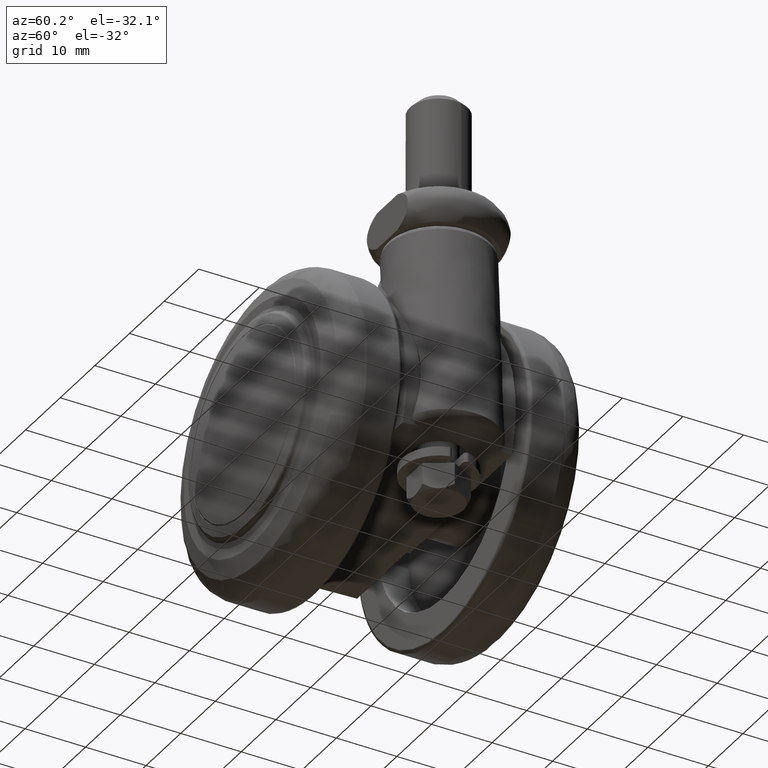
[diagram: clean part render]
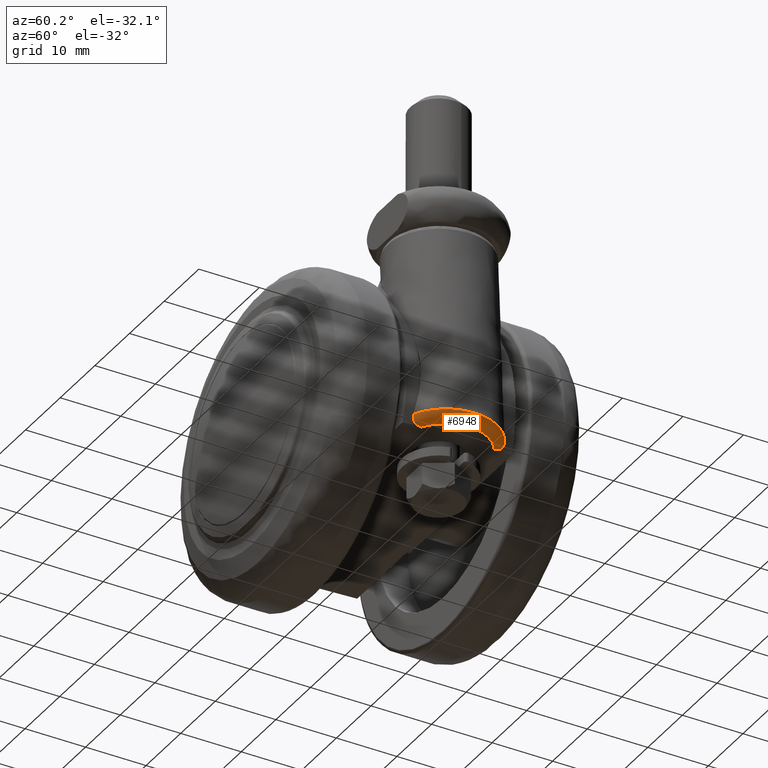
[diagram: same view with one face highlighted and labeled with its STEP entity id]
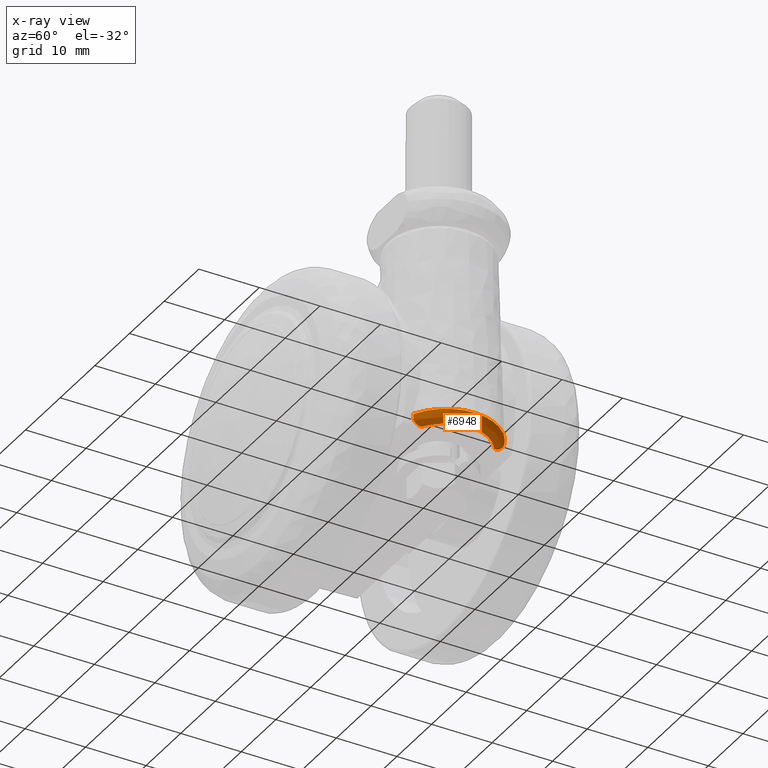
[diagram: x-ray of the same camera — body ghosted, the highlighted face saturated]
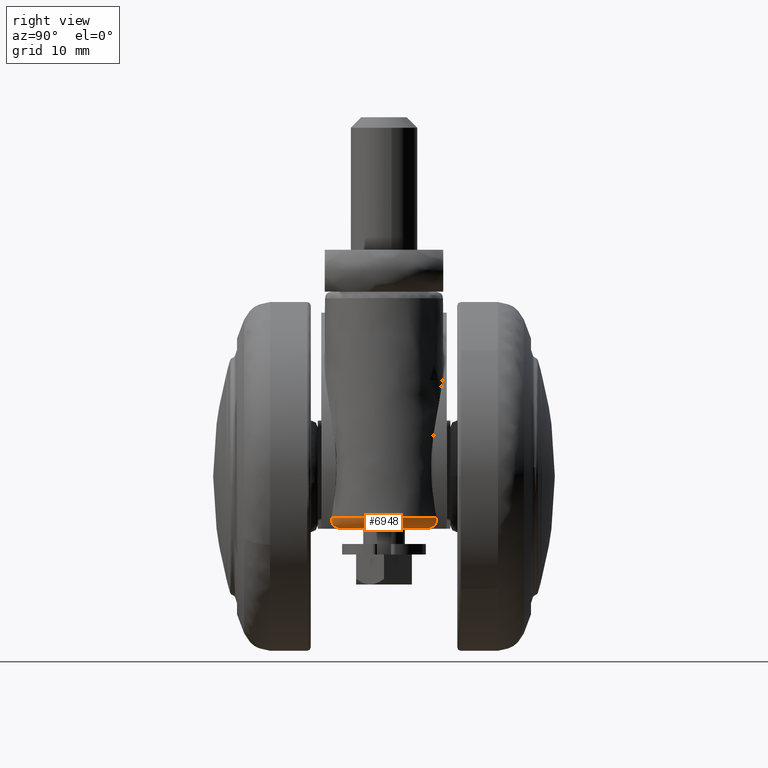
[diagram: same view with one face highlighted and labeled with its STEP entity id]
A machine part, auxiliary view. The second image highlights one B-rep face of the part: STEP entity #6948.
The next image is the same camera in x-ray: the body ghosted, the highlighted face saturated — about 0% of this face is hidden behind the body in this view.
A second angle (right view) of the same face is appended — the face is thin or edge-on in the first view.
In plain terms, the highlighted face is a freeform B-spline surface patch.
Its self-contained STEP definition (entity closure, byte-faithful):
#5938=CARTESIAN_POINT('',(22.884421657853402,7.516820868601760,-5.958834475768210));
#5939=VERTEX_POINT('',#5938);
#5953=CARTESIAN_POINT('',(22.508473345036649,6.008970139218520,-7.500000000000000));
#5954=VERTEX_POINT('',#5953);
#5955=CARTESIAN_POINT('',(22.508473345036620,6.008970139218537,-7.500000000000001));
#5956=CARTESIAN_POINT('',(22.506231776814040,6.076212874391728,-7.498173453091725));
#5957=CARTESIAN_POINT('',(22.501789060679339,6.209485813170627,-7.494553295856058));
#5958=CARTESIAN_POINT('',(22.503060853608751,6.405891968041661,-7.464029017788127));
#5959=CARTESIAN_POINT('',(22.510174281493921,6.594623571487770,-7.414519157483481));
#5960=CARTESIAN_POINT('',(22.523601467419461,6.773360418814027,-7.344292041674562));
#5961=CARTESIAN_POINT('',(22.543116919655510,6.939619026130385,-7.254029196127913));
#5962=CARTESIAN_POINT('',(22.568635853244079,7.090839034380551,-7.144195870099320));
#5963=CARTESIAN_POINT('',(22.599961237822608,7.224415862616407,-7.015763622005511));
#5964=CARTESIAN_POINT('',(22.636816816792550,7.337781595631268,-6.870045445810828));
#5965=CARTESIAN_POINT('',(22.678804678016299,7.428401793980080,-6.708768512389617));
#5966=CARTESIAN_POINT('',(22.725397957887399,7.494118425071187,-6.534013970185825));
#5967=CARTESIAN_POINT('',(22.775896580822319,7.532201837252772,-6.348382425635149));
#5968=CARTESIAN_POINT('',(22.829543046786220,7.543367627648291,-6.154280478886763));
#5969=CARTESIAN_POINT('',(22.865943210608631,7.525759558503388,-6.024644061462816));
#5970=CARTESIAN_POINT('',(22.884421657853402,7.516820868601781,-5.958834475768203));
#5971=B_SPLINE_CURVE_WITH_KNOTS('',3,(#5955,#5956,#5957,#5958,#5959,#5960,#5961,#5962,#5963,#5964,#5965,#5966,#5967,#5968,#5969,#5970),.UNSPECIFIED.,.F.,.U.,(4,1,1,1,1,1,1,1,1,1,1,1,1,4),(0.0,0.080074871910673,0.158705821147708,0.236006138073750,0.312138706447565,0.387324510427231,0.461848199069593,0.536059171837358,0.610366828095563,0.685229253114438,0.761135671481590,0.838584235795772,0.918057712655540,1.0),.UNSPECIFIED.);
#5972=EDGE_CURVE('',#5954,#5939,#5971,.T.);
#6710=CARTESIAN_POINT('',(22.884421657854048,-7.516820868601419,-5.958834475768200));
#6711=VERTEX_POINT('',#6710);
#6807=CARTESIAN_POINT('',(22.508473345036649,-6.008970139218490,-7.500000000000000));
#6808=VERTEX_POINT('',#6807);
#6826=CARTESIAN_POINT('',(22.884421657854030,-7.516820868601448,-5.958834475768196));
#6827=CARTESIAN_POINT('',(22.869375694319430,-7.524525513847927,-6.012391902752970));
#6828=CARTESIAN_POINT('',(22.839662590249141,-7.539740818969920,-6.118158303028771));
#6829=CARTESIAN_POINT('',(22.795592887560709,-7.537641100582349,-6.276976814314483));
#6830=CARTESIAN_POINT('',(22.753373330790279,-7.517457118992989,-6.430940686803198));
#6831=CARTESIAN_POINT('',(22.713434257774232,-7.478387319929075,-6.578746358991229));
#6832=CARTESIAN_POINT('',(22.676203425856730,-7.421877857511639,-6.718872313546770));
#6833=CARTESIAN_POINT('',(22.642026405628101,-7.348953025249858,-6.850046430181801));
#6834=CARTESIAN_POINT('',(22.611189376168959,-7.260878475331502,-6.971135077834703));
#6835=CARTESIAN_POINT('',(22.583918285532469,-7.158955752580858,-7.081178565889184));
#6836=CARTESIAN_POINT('',(22.560386532206088,-7.044544507654996,-7.179384585775593));
#6837=CARTESIAN_POINT('',(22.540723281168610,-6.919026142008928,-7.265125787739053));
#6838=CARTESIAN_POINT('',(22.525019681294118,-6.783785171729928,-7.337942718457679));
#6839=CARTESIAN_POINT('',(22.513348642965639,-6.640189315210156,-7.397504630611688));
#6840=CARTESIAN_POINT('',(22.505734233666661,-6.489570591850779,-7.443723726858439));
#6841=CARTESIAN_POINT('',(22.502311754798232,-6.333217304124193,-7.476280473481094));
#6842=CARTESIAN_POINT('',(22.502759412539699,-6.172332915761853,-7.496387656608402));
#6843=CARTESIAN_POINT('',(22.506559265942631,-6.063694144996030,-7.498789920783607));
#6844=CARTESIAN_POINT('',(22.508473345036649,-6.008970139218490,-7.500000000000000));
#6845=B_SPLINE_CURVE_WITH_KNOTS('',3,(#6826,#6827,#6828,#6829,#6830,#6831,#6832,#6833,#6834,#6835,#6836,#6837,#6838,#6839,#6840,#6841,#6842,#6843,#6844),.UNSPECIFIED.,.F.,.U.,(4,1,1,1,1,1,1,1,1,1,1,1,1,1,1,1,4),(0.0,0.066781331616541,0.131881261822267,0.195530233634498,0.257979204507045,0.319491754369711,0.380335498882832,0.440773469066140,0.501056156552049,0.561414841700334,0.622056637168909,0.683161440913553,0.744880758991837,0.807338176796096,0.870631149469722,0.934833746058687,1.0),.UNSPECIFIED.);
#6846=EDGE_CURVE('',#6711,#6808,#6845,.T.);
#6852=CARTESIAN_POINT('',(21.943267006398109,-6.311987663837494,-7.500000000000000));
#6853=CARTESIAN_POINT('',(22.535391879581880,-6.028577727394185,-7.500000000000000));
#6854=CARTESIAN_POINT('',(23.087262595853009,-5.661657901661197,-7.500000000000000));
#6855=CARTESIAN_POINT('',(24.067619023709220,-4.789336978300448,-7.500000000000000));
#6856=CARTESIAN_POINT('',(24.495975002609331,-4.284039658075961,-7.500000000000000));
#6857=CARTESIAN_POINT('',(25.195631737659649,-3.174583295786061,-7.500000000000000));
#6858=CARTESIAN_POINT('',(25.466860143089349,-2.570538981361803,-7.500000000000000));
#6859=CARTESIAN_POINT('',(25.830961855956229,-1.310932113094059,-7.500000000000000));
#6860=CARTESIAN_POINT('',(25.923797512045638,-0.655499813779384,-7.500000000000000));
#6861=CARTESIAN_POINT('',(25.923797462042309,0.655500346840730,-7.500000000000000));
#6862=CARTESIAN_POINT('',(25.830961755954220,1.310932639098146,-7.500000000000000));
#6863=CARTESIAN_POINT('',(25.466859946998980,2.570539479686703,-7.500000000000000));
#6864=CARTESIAN_POINT('',(25.195631495491750,3.174583773492401,-7.500000000000000));
#6865=CARTESIAN_POINT('',(24.495974675807059,4.284040082594208,-7.500000000000000));
#6866=CARTESIAN_POINT('',(24.067618658361120,4.789337370255080,-7.500000000000000));
#6867=CARTESIAN_POINT('',(23.087262163962251,5.661658219089468,-7.500000000000000));
#6868=CARTESIAN_POINT('',(22.535391419700339,6.028578002869333,-7.500000000000000));
#6869=CARTESIAN_POINT('',(21.943266524897361,6.311987894299154,-7.500000000000000));
#6870=CARTESIAN_POINT('',(22.607531591740631,-7.699827442120227,-7.500000000000001));
#6871=CARTESIAN_POINT('',(23.332766308968544,-7.361179413779602,-7.499999999999431));
#6872=CARTESIAN_POINT('',(24.010802446154436,-6.919271792305225,-7.500000000000854));
#6873=CARTESIAN_POINT('',(25.217899856310765,-5.862383034308269,-7.499999999999147));
#6874=CARTESIAN_POINT('',(25.746789474884146,-5.247511407285200,-7.500000000001135));
#6875=CARTESIAN_POINT('',(26.611907404490150,-3.893059248387381,-7.499999999998858));
#6876=CARTESIAN_POINT('',(26.948016997685375,-3.153628560005554,-7.499999999999996));
#6877=CARTESIAN_POINT('',(27.399458016927380,-1.609374633546190,-7.499999999999996));
#6878=CARTESIAN_POINT('',(27.514724170276608,-0.804736757484084,-7.500000000001138));
#6879=CARTESIAN_POINT('',(27.514724108224442,0.804737411906938,-7.499999999998862));
#6880=CARTESIAN_POINT('',(27.399457892810005,1.609375278992005,-7.500000000000001));
#6881=CARTESIAN_POINT('',(26.948016754684925,3.153629170367491,-7.500000000000001));
#6882=CARTESIAN_POINT('',(26.611907104649497,3.893059832645885,-7.500000000000853));
#6883=CARTESIAN_POINT('',(25.746789071199320,5.247511924485073,-7.499999999999147));
#6884=CARTESIAN_POINT('',(25.217899405671524,5.862383510596239,-7.499999999999431));
#6885=CARTESIAN_POINT('',(24.010801915166034,6.919272175493184,-7.500000000000568));
#6886=CARTESIAN_POINT('',(23.332765744585966,7.361179744788029,-7.499999999999431));
#6887=CARTESIAN_POINT('',(22.607531001985194,7.699827717506251,-7.500000000000001));
#6888=CARTESIAN_POINT('',(22.590649764297410,-7.664556448945532,-5.961878531953087));
#6889=CARTESIAN_POINT('',(23.309219982006709,-7.320415862964404,-5.954432727359189));
#6890=CARTESIAN_POINT('',(23.978940172505240,-6.874870309160587,-5.947493105383998));
#6891=CARTESIAN_POINT('',(25.168647054212801,-5.815623473649992,-5.935165395783612));
#6892=CARTESIAN_POINT('',(25.688476415695341,-5.202048156234772,-5.929778938406402));
#6893=CARTESIAN_POINT('',(26.537541519846499,-3.854851144883404,-5.920980949434932));
#6894=CARTESIAN_POINT('',(26.866689461640998,-3.121368763082270,-5.917570327624306));
#6895=CARTESIAN_POINT('',(27.308543364090308,-1.591846137328424,-5.912991849775306));
#6896=CARTESIAN_POINT('',(27.421203633130670,-0.795964059589253,-5.911824467210289));
#6897=CARTESIAN_POINT('',(27.421203572448430,0.795964706878030,-5.911824467834078));
#6898=CARTESIAN_POINT('',(27.308543242733290,1.591846776047772,-5.912991851044270));
#6899=CARTESIAN_POINT('',(26.866689223676509,3.121369368190978,-5.917570330078601));
#6900=CARTESIAN_POINT('',(26.537541225963562,3.854851724954755,-5.920980952465381));
#6901=CARTESIAN_POINT('',(25.688476019107242,5.202048671721852,-5.929778942530657));
#6902=CARTESIAN_POINT('',(25.168646610846750,5.815623949595479,-5.935165400381545));
#6903=CARTESIAN_POINT('',(23.978939648385850,6.874870694608624,-5.947493110811093));
#6904=CARTESIAN_POINT('',(23.309219423919799,7.320416197469944,-5.954432733146993));
#6905=CARTESIAN_POINT('',(22.590649179974481,7.664556728791832,-5.961878538007816));
#6913=(BOUNDED_SURFACE()B_SPLINE_SURFACE(3,2,((#6852,#6870,#6888),(#6853,#6871,#6889),(#6854,#6872,#6890),(#6855,#6873,#6891),(#6856,#6874,#6892),(#6857,#6875,#6893),(#6858,#6876,#6894),(#6859,#6877,#6895),(#6860,#6878,#6896),(#6861,#6879,#6897),(#6862,#6880,#6898),(#6863,#6881,#6899),(#6864,#6882,#6900),(#6865,#6883,#6901),(#6866,#6884,#6902),(#6867,#6885,#6903),(#6868,#6886,#6904),(#6869,#6887,#6905)),.UNSPECIFIED.,.F.,.F.,.U.)B_SPLINE_SURFACE_WITH_KNOTS((4,2,2,2,2,2,2,2,4),(3,3),(0.0,2.390289117895505,4.780578235791005,7.170867353686505,9.561156471582006,11.951445589477510,14.341734707373011,16.732023825268520,19.122312943164019),(0.0,2.588809934766185),.UNSPECIFIED.)GEOMETRIC_REPRESENTATION_ITEM()RATIONAL_B_SPLINE_SURFACE(((1.0,0.698063638921526,1.0),(1.0,0.696285660359599,1.0),(1.0,0.694622126369009,1.0),(1.0,0.691657908152062,1.0),(1.0,0.690357958462700,1.0),(1.0,0.688230664692963,1.0),(1.0,0.687403630419943,1.0),(1.0,0.686292642997054,1.0),(1.0,0.686008859732908,1.0),(1.0,0.686008860037108,1.0),(1.0,0.686292643305360,1.0),(1.0,0.687403631015101,1.0),(1.0,0.688230665426538,1.0),(1.0,0.690357959459083,1.0),(1.0,0.691657909260178,1.0),(1.0,0.694622127671427,1.0),(1.0,0.696285661744701,1.0),(1.0,0.698063640367127,1.0)))REPRESENTATION_ITEM('')SURFACE());
#6914=CARTESIAN_POINT('',(22.508473345036649,6.008970139218517,-7.500000000000000));
#6915=CARTESIAN_POINT('',(25.923797487043977,3.971716724947550,-7.500000000000000));
#6916=CARTESIAN_POINT('',(25.923797487043981,8.572244E-016,-7.500000000000000));
#6917=CARTESIAN_POINT('',(25.923797487043977,-3.971716724947548,-7.500000000000000));
#6918=CARTESIAN_POINT('',(22.508473345036649,-6.008970139218516,-7.500000000000000));
#6926=(BOUNDED_CURVE()B_SPLINE_CURVE(2,(#6914,#6915,#6916,#6917,#6918),.UNSPECIFIED.,.F.,.U.)B_SPLINE_CURVE_WITH_KNOTS((3,2,3),(0.0,0.500000000000000,1.0),.UNSPECIFIED.)CURVE()GEOMETRIC_REPRESENTATION_ITEM()RATIONAL_B_SPLINE_CURVE((1.0,0.869752913530884,1.0,0.869752913530884,1.0))REPRESENTATION_ITEM(''));
#6927=EDGE_CURVE('',#5954,#6808,#6926,.T.);
#6928=ORIENTED_EDGE('',*,*,#6927,.F.);
#6929=ORIENTED_EDGE('',*,*,#5972,.T.);
#6930=CARTESIAN_POINT('',(22.884421657854059,-7.516820868601410,-5.958834475768197));
#6931=CARTESIAN_POINT('',(27.421203602789554,-5.124433799219100,-5.911824467522101));
#6932=CARTESIAN_POINT('',(27.421203602789550,3.726602E-013,-5.911824467522101));
#6933=CARTESIAN_POINT('',(27.421203602789554,5.124433799219609,-5.911824467522101));
#6934=CARTESIAN_POINT('',(22.884421657853402,7.516820868601759,-5.958834475768204));
#6942=(BOUNDED_CURVE()B_SPLINE_CURVE(2,(#6930,#6931,#6932,#6933,#6934),.UNSPECIFIED.,.F.,.U.)B_SPLINE_CURVE_WITH_KNOTS((3,2,3),(0.0,0.500000000000000,1.0),.UNSPECIFIED.)CURVE()GEOMETRIC_REPRESENTATION_ITEM()RATIONAL_B_SPLINE_CURVE((1.0,0.856404930734300,1.0,0.856404930734300,1.0))REPRESENTATION_ITEM(''));
#6943=EDGE_CURVE('',#6711,#5939,#6942,.T.);
#6944=ORIENTED_EDGE('',*,*,#6943,.F.);
#6945=ORIENTED_EDGE('',*,*,#6846,.T.);
#6946=EDGE_LOOP('',(#6928,#6929,#6944,#6945));
#6947=FACE_OUTER_BOUND('',#6946,.T.);
#6948=ADVANCED_FACE('',(#6947),#6913,.T.);